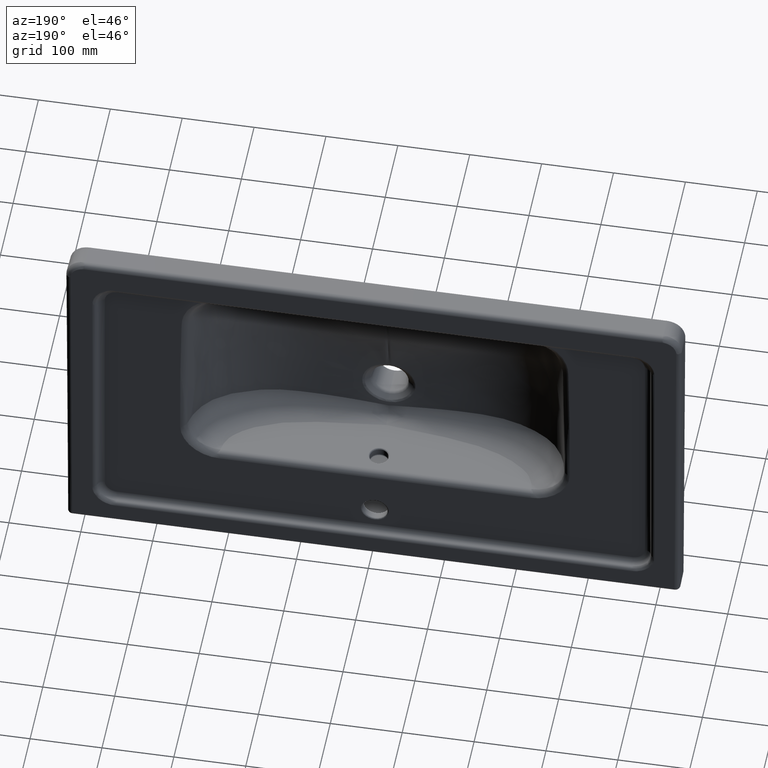
[diagram: clean part render]
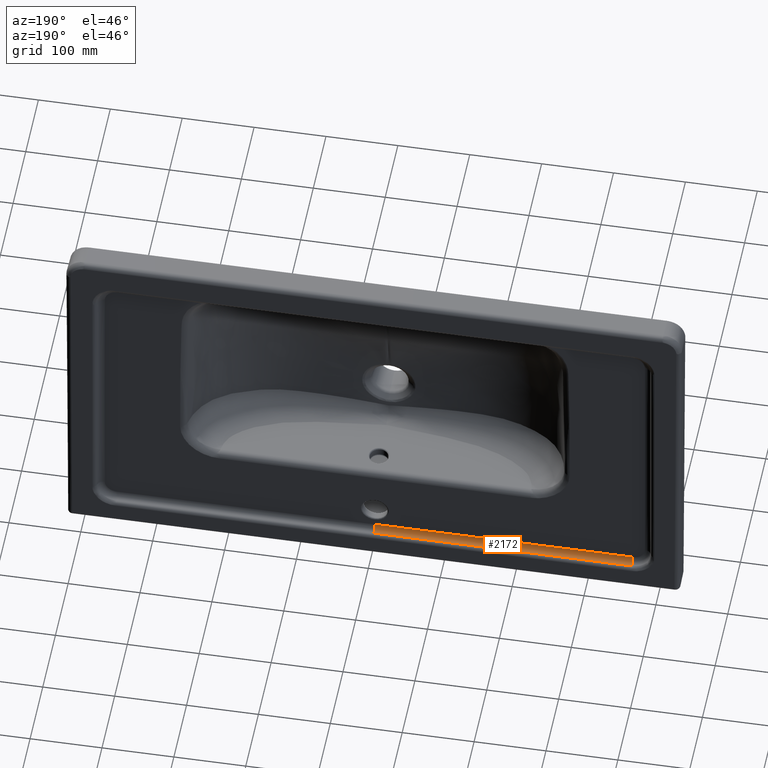
[diagram: same view with one face highlighted and labeled with its STEP entity id]
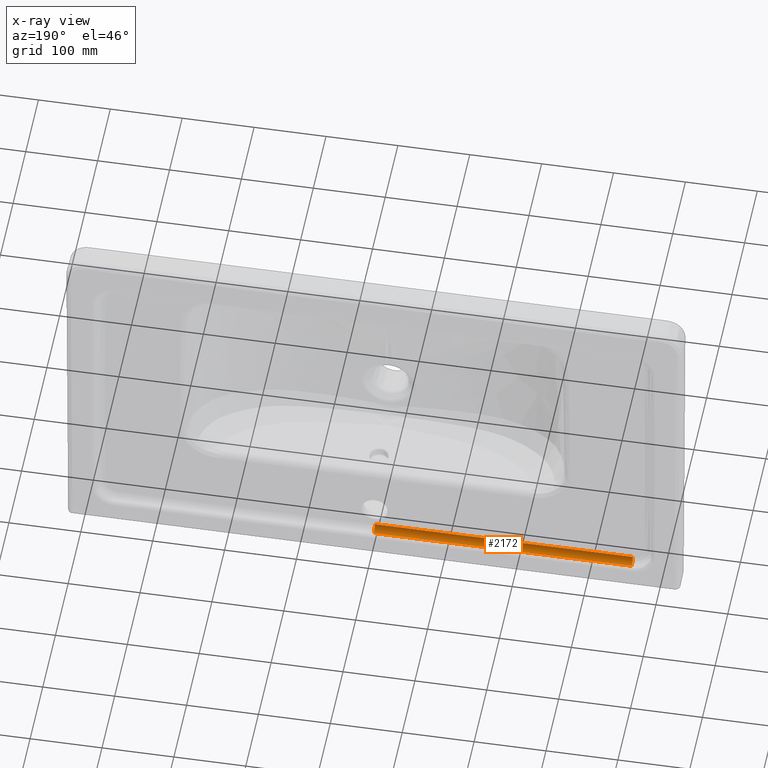
[diagram: x-ray of the same camera — body ghosted, the highlighted face saturated]
A machine part, auxiliary view. The second image highlights one B-rep face of the part: STEP entity #2172.
The next image is the same camera in x-ray: the body ghosted, the highlighted face saturated — about 0% of this face is hidden behind the body in this view.
In plain terms, the highlighted cylindrical surface (edge-blend (fillet) strip) has radius 10 mm, axis along (-1, 0, 0).
Its self-contained STEP definition (entity closure, byte-faithful):
#225=CYLINDRICAL_SURFACE('',#8241,10.);
#720=CIRCLE('',#8081,10.);
#836=CIRCLE('',#8239,10.);
#2172=ADVANCED_FACE('',(#2730),#225,.F.);
#2730=FACE_OUTER_BOUND('',#3256,.T.);
#3256=EDGE_LOOP('',(#5444,#5445,#5446,#5447));
#5444=ORIENTED_EDGE('',*,*,#7091,.F.);
#5445=ORIENTED_EDGE('',*,*,#7601,.T.);
#5446=ORIENTED_EDGE('',*,*,#7603,.T.);
#5447=ORIENTED_EDGE('',*,*,#6615,.F.);
#5905=VERTEX_POINT('',#10072);
#5915=VERTEX_POINT('',#10151);
#6189=VERTEX_POINT('',#26337);
#6467=VERTEX_POINT('',#52236);
#6615=EDGE_CURVE('',#5905,#5915,#7756,.T.);
#7091=EDGE_CURVE('',#6189,#5905,#720,.T.);
#7601=EDGE_CURVE('',#6189,#6467,#7809,.T.);
#7603=EDGE_CURVE('',#6467,#5915,#836,.T.);
#7756=LINE('',#10150,#7840);
#7809=LINE('',#52318,#7896);
#7840=VECTOR('',#8398,1.);
#7896=VECTOR('',#9072,1.);
#8081=AXIS2_PLACEMENT_3D('',#26350,#8733,#8734);
#8239=AXIS2_PLACEMENT_3D('',#52321,#9076,#9077);
#8241=AXIS2_PLACEMENT_3D('',#52329,#9080,#9081);
#8398=DIRECTION('',(-1.,0.,0.));
#8733=DIRECTION('',(-1.,0.,0.));
#8734=DIRECTION('',(0.,0.17364817766693,-0.984807753012207));
#9072=DIRECTION('',(-1.,0.,0.));
#9076=DIRECTION('',(-1.,0.,0.));
#9077=DIRECTION('',(0.,-0.17364817766693,0.98480775301221));
#9080=DIRECTION('',(-1.,0.,0.));
#9081=DIRECTION('',(0.,-0.17364817766693,0.984807753012207));
#10072=CARTESIAN_POINT('',(-4.,-29.1168494463141,-195.68459482305));
#10150=CARTESIAN_POINT('',(-4.,-29.1168494463141,-195.68459482305));
#10151=CARTESIAN_POINT('',(-362.598225316961,-29.1168494463141,-195.68459482305));
#26337=CARTESIAN_POINT('',(-4.,-21.6224859897143,-205.365596089055));
#26350=CARTESIAN_POINT('',(-4.,-19.116849446314,-195.68459482305));
#52236=CARTESIAN_POINT('',(-362.598225316961,-21.6224859897143,-205.365596089055));
#52318=CARTESIAN_POINT('',(661.189391889384,-21.6224859897143,-205.365596089055));
#52321=CARTESIAN_POINT('',(-362.598225316961,-19.116849446314,-195.684594823051));
#52329=CARTESIAN_POINT('',(661.189391889384,-19.116849446314,-195.68459482305));